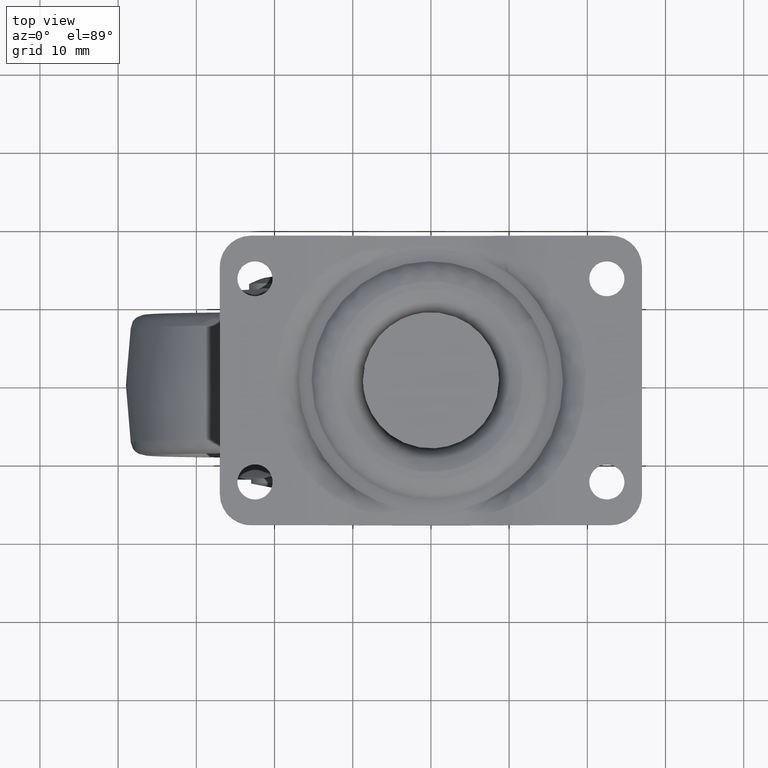
[diagram: clean part render]
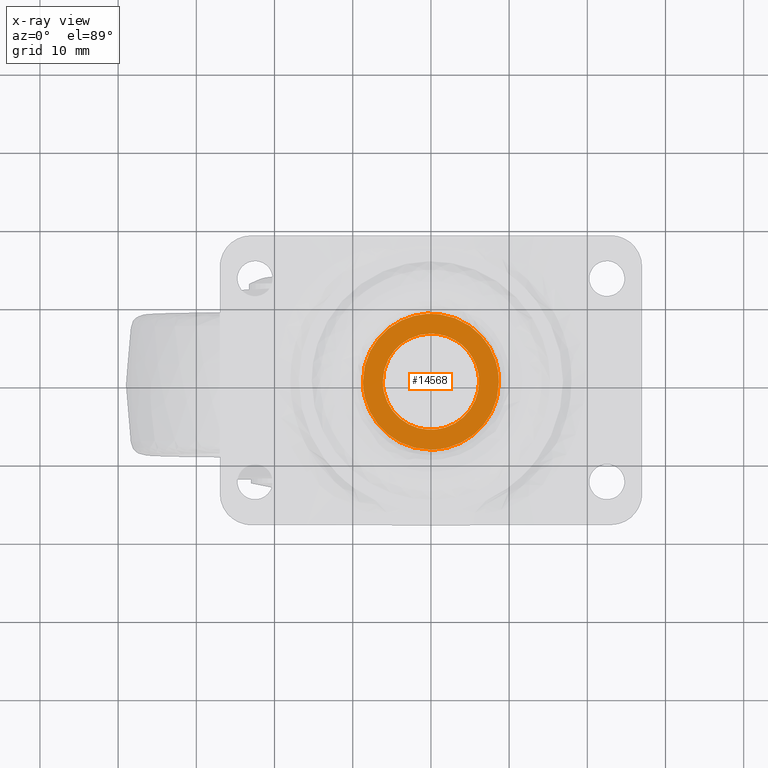
[diagram: x-ray — body ghosted, one internal face saturated and labeled with its STEP entity id]
A machine part, top view, then the same camera in x-ray: the body is ghosted and one INTERNAL B-rep face — a face not visible from any outside direction — is saturated and labeled: STEP entity #14568.
In plain terms, the highlighted face is a freeform B-spline surface patch.
Its self-contained STEP definition (entity closure, byte-faithful):
#11597=CARTESIAN_POINT('',(1.079913618150381,8.632716060275204,-11.081737370593000));
#11598=VERTEX_POINT('',#11597);
#11599=CARTESIAN_POINT('',(8.699999999999999,7.105427E-015,-11.081737370593000));
#11600=VERTEX_POINT('',#11599);
#11601=CARTESIAN_POINT('',(1.079913618150381,8.632716060275204,-11.081737370592997));
#11602=CARTESIAN_POINT('',(8.699999999999999,7.679477821206827,-11.081737370592998));
#11603=CARTESIAN_POINT('',(8.699999999999999,7.105427E-015,-11.081737370593000));
#11611=(BOUNDED_CURVE()B_SPLINE_CURVE(2,(#11601,#11602,#11603),.UNSPECIFIED.,.F.,.U.)B_SPLINE_CURVE_WITH_KNOTS((3,3),(0.271473928972884,0.500000000000000),.UNSPECIFIED.)CURVE()GEOMETRIC_REPRESENTATION_ITEM()RATIONAL_B_SPLINE_CURVE((0.954005430270483,0.732265053896305,1.0))REPRESENTATION_ITEM(''));
#11612=EDGE_CURVE('',#11598,#11600,#11611,.T.);
#11614=CARTESIAN_POINT('',(-0.075906930263014,-8.699668852188793,-11.081737370593199));
#11615=VERTEX_POINT('',#11614);
#11616=CARTESIAN_POINT('',(8.699999999999999,7.105427E-015,-11.081737370593000));
#11617=CARTESIAN_POINT('',(8.699999999999999,-8.699999999999994,-11.081737370593000));
#11618=CARTESIAN_POINT('',(0.0,-8.699999999999992,-11.081737370593000));
#11619=CARTESIAN_POINT('',(-0.037954187456020,-8.699999999999992,-11.081737370593002));
#11620=CARTESIAN_POINT('',(-0.075906930263014,-8.699668852188793,-11.081737370593197));
#11628=(BOUNDED_CURVE()B_SPLINE_CURVE(2,(#11616,#11617,#11618,#11619,#11620),.UNSPECIFIED.,.F.,.U.)B_SPLINE_CURVE_WITH_KNOTS((3,2,3),(0.500000000000000,0.750000000000000,0.751539612322146),.UNSPECIFIED.)CURVE()GEOMETRIC_REPRESENTATION_ITEM()RATIONAL_B_SPLINE_CURVE((1.0,0.707106781186547,1.0,0.998196231964967,0.996414680757879))REPRESENTATION_ITEM(''));
#11629=EDGE_CURVE('',#11600,#11615,#11628,.T.);
#11704=CARTESIAN_POINT('',(-8.699999999999999,7.105427E-015,-11.081737370593000));
#11705=VERTEX_POINT('',#11704);
#11706=CARTESIAN_POINT('',(-8.699999999999999,7.105427E-015,-11.081737370593000));
#11707=CARTESIAN_POINT('',(-8.699999999999999,8.700000000000006,-11.081737370593000));
#11708=CARTESIAN_POINT('',(0.0,8.700000000000006,-11.081737370593000));
#11709=CARTESIAN_POINT('',(0.542052869597921,8.700000000000006,-11.081737370593004));
#11710=CARTESIAN_POINT('',(1.079913618150381,8.632716060275204,-11.081737370592997));
#11718=(BOUNDED_CURVE()B_SPLINE_CURVE(2,(#11706,#11707,#11708,#11709,#11710),.UNSPECIFIED.,.F.,.U.)B_SPLINE_CURVE_WITH_KNOTS((3,2,3),(0.0,0.250000000000000,0.271473928972884),.UNSPECIFIED.)CURVE()GEOMETRIC_REPRESENTATION_ITEM()RATIONAL_B_SPLINE_CURVE((1.0,0.707106781186547,1.0,0.974841727290242,0.954005430270483))REPRESENTATION_ITEM(''));
#11719=EDGE_CURVE('',#11705,#11598,#11718,.T.);
#11753=CARTESIAN_POINT('',(-0.075906930263014,-8.699668852188793,-11.081737370593197));
#11754=CARTESIAN_POINT('',(-8.699999999999999,-8.624421340789029,-11.081737370593000));
#11755=CARTESIAN_POINT('',(-8.699999999999999,7.105427E-015,-11.081737370593000));
#11763=(BOUNDED_CURVE()B_SPLINE_CURVE(2,(#11753,#11754,#11755),.UNSPECIFIED.,.F.,.U.)B_SPLINE_CURVE_WITH_KNOTS((3,3),(0.751539612322146,1.0),.UNSPECIFIED.)CURVE()GEOMETRIC_REPRESENTATION_ITEM()RATIONAL_B_SPLINE_CURVE((0.996414680757879,0.708910549221580,1.0))REPRESENTATION_ITEM(''));
#11764=EDGE_CURVE('',#11615,#11705,#11763,.T.);
#12726=CARTESIAN_POINT('',(-6.150000000000000,7.105427E-015,-11.081737370593000));
#12727=VERTEX_POINT('',#12726);
#12728=CARTESIAN_POINT('',(-2.771977250768348,5.489867222806129,-11.081737371198461));
#12729=VERTEX_POINT('',#12728);
#12730=CARTESIAN_POINT('',(-6.150000000000000,7.105427E-015,-11.081737370593000));
#12731=CARTESIAN_POINT('',(-6.150000000000001,3.784215367304797,-11.081737370593000));
#12732=CARTESIAN_POINT('',(-2.771977250768348,5.489867222806129,-11.081737371198457));
#12740=(BOUNDED_CURVE()B_SPLINE_CURVE(2,(#12730,#12731,#12732),.UNSPECIFIED.,.F.,.U.)B_SPLINE_CURVE_WITH_KNOTS((3,3),(0.0,0.173362720798534),.UNSPECIFIED.)CURVE()GEOMETRIC_REPRESENTATION_ITEM()RATIONAL_B_SPLINE_CURVE((1.0,0.796892938732238,0.875475419502667))REPRESENTATION_ITEM(''));
#12741=EDGE_CURVE('',#12727,#12729,#12740,.T.);
#12743=CARTESIAN_POINT('',(6.150000000000000,7.105427E-015,-11.081737370593000));
#12744=VERTEX_POINT('',#12743);
#12745=CARTESIAN_POINT('',(6.150000000000000,7.105427E-015,-11.081737370593000));
#12746=CARTESIAN_POINT('',(6.150000000000002,-6.149999999999995,-11.081737370592998));
#12747=CARTESIAN_POINT('',(0.0,-6.149999999999993,-11.081737370593000));
#12748=CARTESIAN_POINT('',(-6.150000000000002,-6.149999999999995,-11.081737370592998));
#12749=CARTESIAN_POINT('',(-6.150000000000000,7.105427E-015,-11.081737370593000));
#12757=(BOUNDED_CURVE()B_SPLINE_CURVE(2,(#12745,#12746,#12747,#12748,#12749),.UNSPECIFIED.,.F.,.U.)B_SPLINE_CURVE_WITH_KNOTS((3,2,3),(0.500000000000000,0.750000000000000,1.0),.UNSPECIFIED.)CURVE()GEOMETRIC_REPRESENTATION_ITEM()RATIONAL_B_SPLINE_CURVE((1.0,0.707106781186548,1.0,0.707106781186548,1.0))REPRESENTATION_ITEM(''));
#12758=EDGE_CURVE('',#12744,#12727,#12757,.T.);
#12760=CARTESIAN_POINT('',(5.773213224685039,2.119553977582641,-11.081737370929099));
#12761=VERTEX_POINT('',#12760);
#12762=CARTESIAN_POINT('',(5.773213224685039,2.119553977582641,-11.081737370929101));
#12763=CARTESIAN_POINT('',(6.150000000000000,1.093267118221833,-11.081737370592998));
#12764=CARTESIAN_POINT('',(6.150000000000000,7.105427E-015,-11.081737370593000));
#12772=(BOUNDED_CURVE()B_SPLINE_CURVE(2,(#12762,#12763,#12764),.UNSPECIFIED.,.F.,.U.)B_SPLINE_CURVE_WITH_KNOTS((3,3),(0.441460350201953,0.500000000000000),.UNSPECIFIED.)CURVE()GEOMETRIC_REPRESENTATION_ITEM()RATIONAL_B_SPLINE_CURVE((0.894951884912615,0.931416534169751,1.0))REPRESENTATION_ITEM(''));
#12773=EDGE_CURVE('',#12761,#12744,#12772,.T.);
#12876=CARTESIAN_POINT('',(-2.771977250768348,5.489867222806129,-11.081737371198457));
#12877=CARTESIAN_POINT('',(-1.464592315862277,6.150000000000007,-11.081737370593004));
#12878=CARTESIAN_POINT('',(0.0,6.150000000000008,-11.081737370593000));
#12879=CARTESIAN_POINT('',(4.293491695853732,6.150000000000008,-11.081737370592998));
#12880=CARTESIAN_POINT('',(5.773213224685039,2.119553977582641,-11.081737370929099));
#12888=(BOUNDED_CURVE()B_SPLINE_CURVE(2,(#12876,#12877,#12878,#12879,#12880),.UNSPECIFIED.,.F.,.U.)B_SPLINE_CURVE_WITH_KNOTS((3,2,3),(0.173362720798534,0.250000000000000,0.441460350201953),.UNSPECIFIED.)CURVE()GEOMETRIC_REPRESENTATION_ITEM()RATIONAL_B_SPLINE_CURVE((0.875475419502667,0.910213842454310,1.0,0.775690247016796,0.894951884912615))REPRESENTATION_ITEM(''));
#12889=EDGE_CURVE('',#12729,#12761,#12888,.T.);
#14551=CARTESIAN_POINT('',(-9.569129802936674,-9.568753971999040,-11.081737370593000));
#14552=CARTESIAN_POINT('',(9.569130425209163,-9.568753971999040,-11.081737370593000));
#14553=CARTESIAN_POINT('',(-9.569129802936674,9.568516730611689,-11.081737370593000));
#14554=CARTESIAN_POINT('',(9.569130425209163,9.568516730611689,-11.081737370593000));
#14555=B_SPLINE_SURFACE_WITH_KNOTS('',1,1,((#14551,#14553),(#14552,#14554)),.UNSPECIFIED.,.F.,.F.,.U.,(2,2),(2,2),(0.0,19.138260228145839),(0.0,19.137270702610731),.UNSPECIFIED.);
#14556=ORIENTED_EDGE('',*,*,#11764,.F.);
#14557=ORIENTED_EDGE('',*,*,#11629,.F.);
#14558=ORIENTED_EDGE('',*,*,#11612,.F.);
#14559=ORIENTED_EDGE('',*,*,#11719,.F.);
#14560=EDGE_LOOP('',(#14556,#14557,#14558,#14559));
#14561=FACE_OUTER_BOUND('',#14560,.T.);
#14562=ORIENTED_EDGE('',*,*,#12758,.T.);
#14563=ORIENTED_EDGE('',*,*,#12741,.T.);
#14564=ORIENTED_EDGE('',*,*,#12889,.T.);
#14565=ORIENTED_EDGE('',*,*,#12773,.T.);
#14566=EDGE_LOOP('',(#14562,#14563,#14564,#14565));
#14567=FACE_BOUND('',#14566,.T.);
#14568=ADVANCED_FACE('',(#14561,#14567),#14555,.T.);